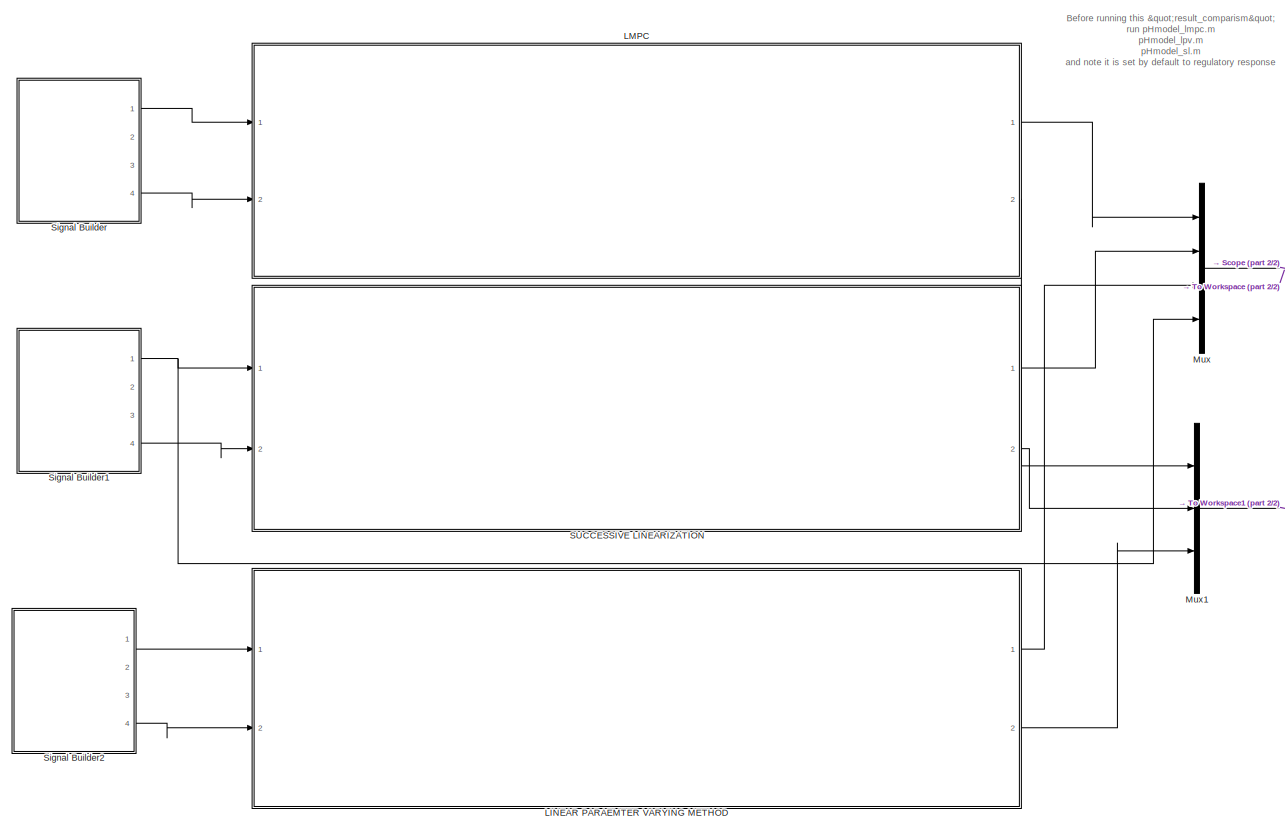
[diagram: root canvas - part 1/2, most of the canvas]
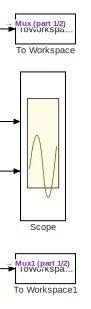
[diagram: root canvas - part 2/2, middle right region]
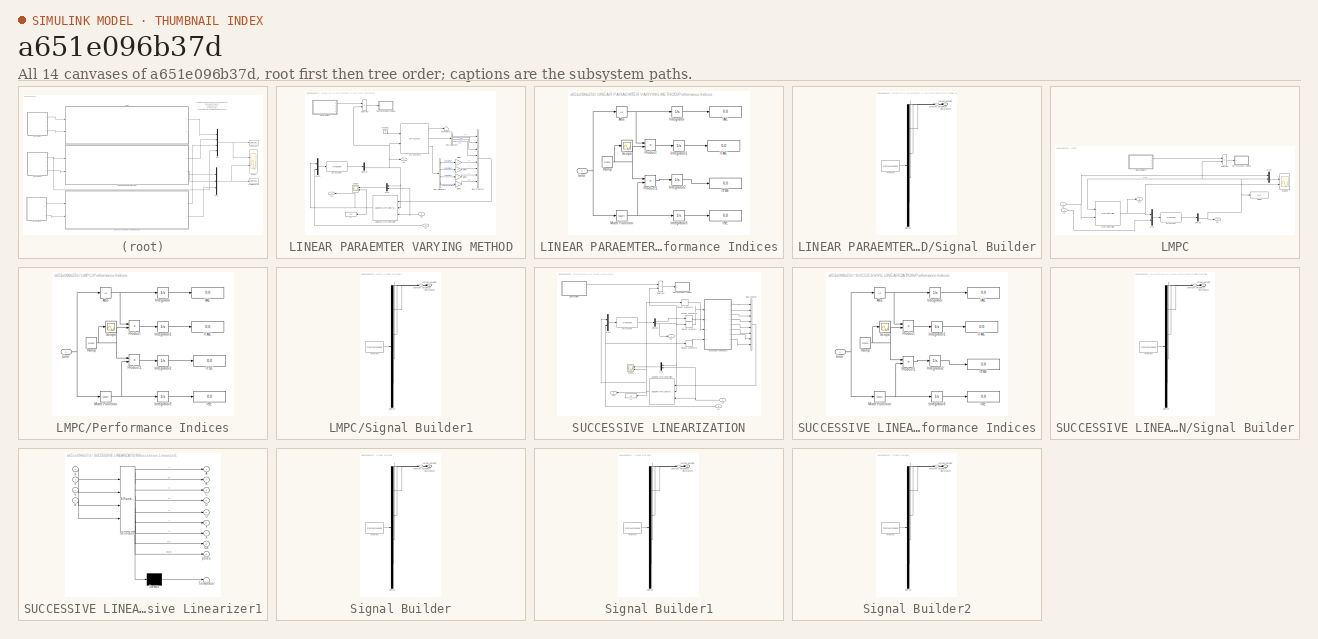
[diagram: thumbnail index - all 14 canvases of the model, root first then tree order]
MODEL slx_a651e096b37d
KIND model
CONFIG AbsTol = auto
CONFIG EnableMultiTasking = off
CONFIG FixedStep = auto
CONFIG MaxStep = auto
CONFIG MinStep = auto
CONFIG RelTol = 1e-3
CONFIG SampleTimeConstraint = Unconstrained
CONFIG SolverName = VariableStepAuto
CONFIG StartTime = 0.0
CONFIG StopTime = 3000
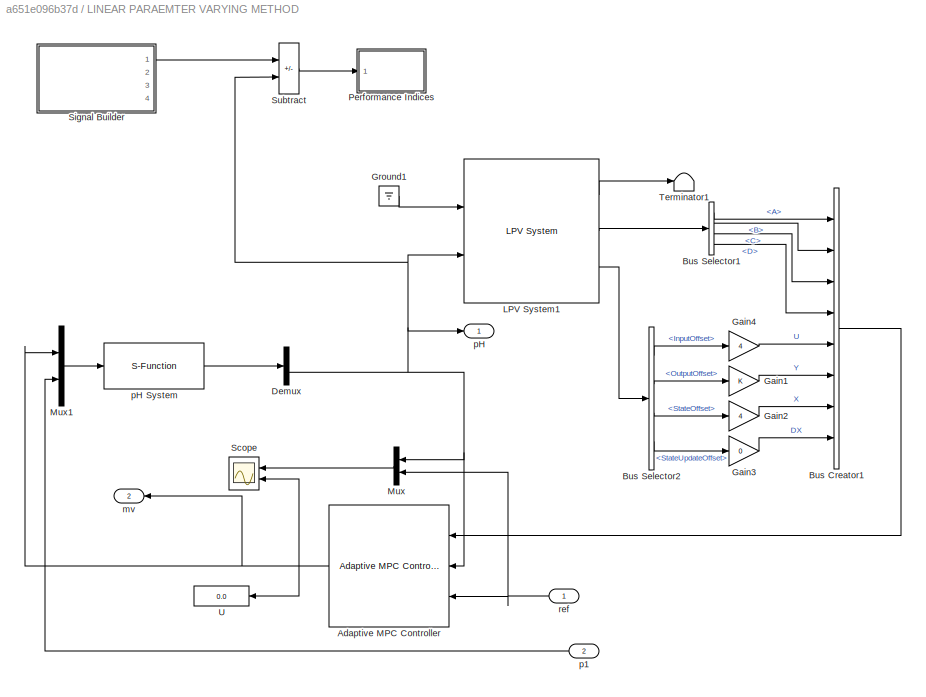
BLOCK [SubSystem] LINEAR PARAEMTER VARYING METHOD
  Ports = [2, 2]
  RequestExecContextInheritance = off
BLOCK [Reference] LINEAR PARAEMTER VARYING METHOD/Adaptive MPC Controller  REF=mpclib/Adaptive MPC Controller  (lib defined in mdl_ae329e0e0455)
  Ports = [3, 1]
  SCDEnableBlockLinearizationSpecification = on
  SourceBlock = mpclib/Adaptive MPC Controller
  SourceProductBaseCode = MP
  SourceType = Adaptive MPC
BLOCK [BusCreator] LINEAR PARAEMTER VARYING METHOD/Bus Creator1
  DisplayOption = bar
  InheritFromInputs = on
  Inputs = 8
  Ports = [8, 1]
BLOCK [BusSelector] LINEAR PARAEMTER VARYING METHOD/Bus Selector1
  OutputSignals = A,B,C,D
  Ports = [1, 4]
BLOCK [BusSelector] LINEAR PARAEMTER VARYING METHOD/Bus Selector2
  OutputSignals = InputOffset,OutputOffset,StateOffset,StateUpdateOffset
  Ports = [1, 4]
BLOCK [Demux] LINEAR PARAEMTER VARYING METHOD/Demux
  Outputs = 2
  Ports = [1, 2]
BLOCK [Gain] LINEAR PARAEMTER VARYING METHOD/Gain1
BLOCK [Gain] LINEAR PARAEMTER VARYING METHOD/Gain2
  Gain = 4
BLOCK [Gain] LINEAR PARAEMTER VARYING METHOD/Gain3
  Gain = 0
BLOCK [Gain] LINEAR PARAEMTER VARYING METHOD/Gain4
  Gain = 4
BLOCK [Ground] LINEAR PARAEMTER VARYING METHOD/Ground1
BLOCK [Reference] LINEAR PARAEMTER VARYING METHOD/LPV System1  REF=cstblocks/Linear Parameter Varying/LPV System
  Ports = [2, 3]
  SourceBlock = cstblocks/Linear Parameter Varying/LPV System
  SourceProductBaseCode = CT
  SourceType = LPV Block
BLOCK [Mux] LINEAR PARAEMTER VARYING METHOD/Mux
  DisplayOption = bar
  Inputs = 2
  NameLocation = top
  Ports = [2, 1]
BLOCK [Mux] LINEAR PARAEMTER VARYING METHOD/Mux1
  DisplayOption = bar
  Inputs = 2
  Ports = [2, 1]
BLOCK [SubSystem] LINEAR PARAEMTER VARYING METHOD/Performance Indices
  Ports = [1]
  RequestExecContextInheritance = off
BLOCK [Abs] LINEAR PARAEMTER VARYING METHOD/Performance Indices/Abs
  SaturateOnIntegerOverflow = off
BLOCK [Inport] LINEAR PARAEMTER VARYING METHOD/Performance Indices/Error
BLOCK [Display] LINEAR PARAEMTER VARYING METHOD/Performance Indices/IAE
  Decimation = 1
  Ports = [1]
BLOCK [Display] LINEAR PARAEMTER VARYING METHOD/Performance Indices/ISE
  Decimation = 1
  Ports = [1]
BLOCK [Display] LINEAR PARAEMTER VARYING METHOD/Performance Indices/ITAE
  Decimation = 1
  Ports = [1]
BLOCK [Display] LINEAR PARAEMTER VARYING METHOD/Performance Indices/ITSE
  Decimation = 1
  Ports = [1]
BLOCK [Integrator] LINEAR PARAEMTER VARYING METHOD/Performance Indices/Integrator
  Ports = [1, 1]
BLOCK [Integrator] LINEAR PARAEMTER VARYING METHOD/Performance Indices/Integrator1
  Ports = [1, 1]
BLOCK [Integrator] LINEAR PARAEMTER VARYING METHOD/Performance Indices/Integrator2
  Ports = [1, 1]
BLOCK [Integrator] LINEAR PARAEMTER VARYING METHOD/Performance Indices/Integrator3
  Ports = [1, 1]
BLOCK [Math] LINEAR PARAEMTER VARYING METHOD/Performance Indices/Math Function
  Operator = square
  Ports = [1, 1]
  SignedPower = on
BLOCK [Product] LINEAR PARAEMTER VARYING METHOD/Performance Indices/Product
  Ports = [2, 1]
  RndMeth = Zero
BLOCK [Product] LINEAR PARAEMTER VARYING METHOD/Performance Indices/Product1
  Ports = [2, 1]
  RndMeth = Zero
BLOCK [Reference] LINEAR PARAEMTER VARYING METHOD/Performance Indices/Ramp  REF=simulink/Sources/Ramp
  Ports = [0, 1]
  SourceBlock = simulink/Sources/Ramp
  SourceProductBaseCode = SL
  SourceType = Ramp
BLOCK [Scope] LINEAR PARAEMTER VARYING METHOD/Performance Indices/Scope
  Floating = off
  NumInputPorts = 1
  Ports = [1]
  ScopeSpecificationString = Simulink.scopes.TimeScopeBlockCfg('CurrentConfiguration', extmgr.ConfigurationSet(extmgr.Configuration('Core','General UI',true),extmgr.Configuration('Core','Source UI',true),extmgr.Configuration('Sources','WiredSimulink',true,'DataLoggingLimitDataPoints',true,'DataLoggingSaveFormat','Array','DataLoggingDecimation','1','DataLoggingDecimateData',true),extmgr.Configuration('Visuals','Time Domain',tr...<+878ch>  <repeated x3 — deduplicated; at blocks: Scope>
BLOCK [Scope] LINEAR PARAEMTER VARYING METHOD/Scope
  Floating = off
  NumInputPorts = 2
  Ports = [2]
  ScopeSpecificationString = Simulink.scopes.TimeScopeBlockCfg('CurrentConfiguration', extmgr.ConfigurationSet(extmgr.Configuration('Core','General UI',true),extmgr.Configuration('Core','Source UI',true),extmgr.Configuration('Sources','WiredSimulink',true,'DataLogging',true,'DataLoggingVariableName','ScopeData2'),extmgr.Configuration('Visuals','Time Domain',true,'SerializedDisplays',{struct('MinYLimReal','1.80247','MaxYLimRea...<+2102ch>
BLOCK [SubSystem] LINEAR PARAEMTER VARYING METHOD/Signal Builder
  ClipboardFcn = sigbuilder_block('clipboard');
  CloseFcn = sigbuilder_block('close');
  ContinueFcn = sigbuilder_block('continue');
  CopyFcn = sigbuilder_block('copy');
  DeleteFcn = sigbuilder_block('delete');
  LoadFcn = sigbuilder_block('load');
  MaskHideContents = on
  ModelCloseFcn = sigbuilder_block('modelClose');
  NameChangeFcn = sigbuilder_block('namechange');
  OpenFcn = sigbuilder_block('open',[404 117.5 550.5 362.5 ]);
  PauseFcn = sigbuilder_block('pause');
  Ports = [0, 4]
  PreSaveFcn = sigbuilder_block('preSave');
  RequestExecContextInheritance = off
  StartFcn = sigbuilder_block('start');
  StopFcn = sigbuilder_block('stop');
  Tag = STV Subsys
BLOCK [Demux] LINEAR PARAEMTER VARYING METHOD/Signal Builder/Demux
  DisplayOption = none
  Ports = [1, 4]
  Tag = STV Demux
BLOCK [FromWorkspace] LINEAR PARAEMTER VARYING METHOD/Signal Builder/FromWs
  Tag = STV FromWs
  VariableName = tuvar
BLOCK [Outport] LINEAR PARAEMTER VARYING METHOD/Signal Builder/constant setpoint
  Tag = STV Outport
BLOCK [Outport] LINEAR PARAEMTER VARYING METHOD/Signal Builder/disturbance
  Port = 4
  Tag = STV Outport
BLOCK [Outport] LINEAR PARAEMTER VARYING METHOD/Signal Builder/p1
  Port = 3
  Tag = STV Outport
BLOCK [Outport] LINEAR PARAEMTER VARYING METHOD/Signal Builder/varying setpoint
  Port = 2
  Tag = STV Outport
BLOCK [Sum] LINEAR PARAEMTER VARYING METHOD/Subtract
  IconShape = rectangular
  Inputs = +-
  Ports = [2, 1]
BLOCK [Terminator] LINEAR PARAEMTER VARYING METHOD/Terminator1
BLOCK [Display] LINEAR PARAEMTER VARYING METHOD/U
  Decimation = 1
  Ports = [1]
BLOCK [Outport] LINEAR PARAEMTER VARYING METHOD/mv
  Port = 2
BLOCK [Inport] LINEAR PARAEMTER VARYING METHOD/p1
  Port = 2
BLOCK [Outport] LINEAR PARAEMTER VARYING METHOD/pH
BLOCK [S-Function] LINEAR PARAEMTER VARYING METHOD/pH System
  EnableBusSupport = off
  FunctionName = pH_sfun
  Ports = [1, 1]
  SFcnIsStateOwnerBlock = off
  SFunctionDeploymentMode = off
BLOCK [Inport] LINEAR PARAEMTER VARYING METHOD/ref
BLOCK [SubSystem] LMPC
  Ports = [2, 2]
  RequestExecContextInheritance = off
BLOCK [Demux] LMPC/Demux
  Outputs = 2
  Ports = [1, 2]
BLOCK [Display] LMPC/Display
  Decimation = 1
  Ports = [1]
BLOCK [Reference] LMPC/MPC Controller  REF=mpclib/MPC Controller  (lib defined in mdl_ae329e0e0455)
  Ports = [2, 1]
  SCDEnableBlockLinearizationSpecification = on
  SourceBlock = mpclib/MPC Controller
  SourceProductBaseCode = MP
  SourceType = MPC
BLOCK [Mux] LMPC/Mux
  DisplayOption = bar
  Inputs = 2
  Ports = [2, 1]
BLOCK [Mux] LMPC/Mux3
  DisplayOption = bar
  Inputs = 2
  Ports = [2, 1]
BLOCK [SubSystem] LMPC/Performance Indices
  Ports = [1]
  RequestExecContextInheritance = off
BLOCK [Abs] LMPC/Performance Indices/Abs
  SaturateOnIntegerOverflow = off
BLOCK [Inport] LMPC/Performance Indices/Error
BLOCK [Display] LMPC/Performance Indices/IAE
  Decimation = 1
  Ports = [1]
BLOCK [Display] LMPC/Performance Indices/ISE
  Decimation = 1
  Ports = [1]
BLOCK [Display] LMPC/Performance Indices/ITAE
  Decimation = 1
  Ports = [1]
BLOCK [Display] LMPC/Performance Indices/ITSE
  Decimation = 1
  Ports = [1]
BLOCK [Integrator] LMPC/Performance Indices/Integrator
  Ports = [1, 1]
BLOCK [Integrator] LMPC/Performance Indices/Integrator1
  Ports = [1, 1]
BLOCK [Integrator] LMPC/Performance Indices/Integrator2
  Ports = [1, 1]
BLOCK [Integrator] LMPC/Performance Indices/Integrator3
  Ports = [1, 1]
BLOCK [Math] LMPC/Performance Indices/Math Function
  Operator = square
  Ports = [1, 1]
  SignedPower = on
BLOCK [Product] LMPC/Performance Indices/Product
  Ports = [2, 1]
  RndMeth = Zero
BLOCK [Product] LMPC/Performance Indices/Product1
  Ports = [2, 1]
  RndMeth = Zero
BLOCK [Reference] LMPC/Performance Indices/Ramp  REF=simulink/Sources/Ramp
  Ports = [0, 1]
  SourceBlock = simulink/Sources/Ramp
  SourceProductBaseCode = SL
  SourceType = Ramp
BLOCK [Scope] LMPC/Performance Indices/Scope
  Floating = off
  NumInputPorts = 1
  Ports = [1]
BLOCK [Scope] LMPC/Scope6
  Floating = off
  NumInputPorts = 2
  Ports = [2]
  ScopeSpecificationString = Simulink.scopes.TimeScopeBlockCfg('CurrentConfiguration', extmgr.ConfigurationSet(extmgr.Configuration('Core','General UI',true),extmgr.Configuration('Core','Source UI',true),extmgr.Configuration('Sources','WiredSimulink',true,'DataLoggingVariableName','ScopeData1'),extmgr.Configuration('Visuals','Time Domain',true,'SerializedDisplays',{struct('MinYLimReal','1.60086','MaxYLimReal','13.90053','YLab...<+2132ch>
BLOCK [SubSystem] LMPC/Signal Builder1
  ClipboardFcn = sigbuilder_block('clipboard');
  CloseFcn = sigbuilder_block('close');
  ContinueFcn = sigbuilder_block('continue');
  CopyFcn = sigbuilder_block('copy');
  DeleteFcn = sigbuilder_block('delete');
  LoadFcn = sigbuilder_block('load');
  MaskHideContents = on
  ModelCloseFcn = sigbuilder_block('modelClose');
  NameChangeFcn = sigbuilder_block('namechange');
  OpenFcn = sigbuilder_block('open',[404 117.5 550.5 362.5 ]);
  PauseFcn = sigbuilder_block('pause');
  Ports = [0, 4]
  PreSaveFcn = sigbuilder_block('preSave');
  RequestExecContextInheritance = off
  StartFcn = sigbuilder_block('start');
  StopFcn = sigbuilder_block('stop');
  Tag = STV Subsys
BLOCK [Demux] LMPC/Signal Builder1/Demux
  DisplayOption = none
  Ports = [1, 4]
  Tag = STV Demux
BLOCK [FromWorkspace] LMPC/Signal Builder1/FromWs
  Tag = STV FromWs
  VariableName = tuvar
BLOCK [Outport] LMPC/Signal Builder1/constant setpoint
  Tag = STV Outport
BLOCK [Outport] LMPC/Signal Builder1/disturbance
  Port = 4
  Tag = STV Outport
BLOCK [Outport] LMPC/Signal Builder1/p1
  Port = 3
  Tag = STV Outport
BLOCK [Outport] LMPC/Signal Builder1/varying setpoint
  Port = 2
  Tag = STV Outport
BLOCK [Sum] LMPC/Subtract
  IconShape = rectangular
  Inputs = +-
  Ports = [2, 1]
BLOCK [Outport] LMPC/mv
  Port = 2
BLOCK [Inport] LMPC/p1
  Port = 2
BLOCK [Outport] LMPC/pH
BLOCK [S-Function] LMPC/pH System
  EnableBusSupport = off
  FunctionName = pH_sfun
  Ports = [1, 1]
  SFcnIsStateOwnerBlock = off
  SFunctionDeploymentMode = off
BLOCK [Inport] LMPC/ref
BLOCK [Mux] Mux
  DisplayOption = bar
  Ports = [4, 1]
BLOCK [Mux] Mux1
  DisplayOption = bar
  Inputs = 3
  Ports = [3, 1]
BLOCK [SubSystem] SUCCESSIVE LINEARIZATION
  Ports = [2, 2]
  RequestExecContextInheritance = off
BLOCK [Reference] SUCCESSIVE LINEARIZATION/Adaptive MPC Controller  REF=mpclib/Adaptive MPC Controller  (lib defined in mdl_ae329e0e0455)
  Ports = [3, 1]
  SCDEnableBlockLinearizationSpecification = on
  SourceBlock = mpclib/Adaptive MPC Controller
  SourceProductBaseCode = MP
  SourceType = Adaptive MPC
BLOCK [BusCreator] SUCCESSIVE LINEARIZATION/Bus Creator
  DisplayOption = bar
  InheritFromInputs = on
  Inputs = 8
  Ports = [8, 1]
BLOCK [Demux] SUCCESSIVE LINEARIZATION/Demux
  Outputs = 2
  Ports = [1, 2]
BLOCK [Mux] SUCCESSIVE LINEARIZATION/Mux
  DisplayOption = bar
  Inputs = 2
  NameLocation = top
  Ports = [2, 1]
BLOCK [Mux] SUCCESSIVE LINEARIZATION/Mux1
  DisplayOption = bar
  Inputs = 2
  Ports = [2, 1]
BLOCK [Memory] SUCCESSIVE LINEARIZATION/Output Memory
  InitialCondition = 2.542
BLOCK [Memory] SUCCESSIVE LINEARIZATION/Output Memory1
  InitialCondition = 0.8
BLOCK [Memory] SUCCESSIVE LINEARIZATION/Output Memory2
  InitialCondition = 13
BLOCK [Memory] SUCCESSIVE LINEARIZATION/Output Memory3
  InitialCondition = 0.129987
BLOCK [SubSystem] SUCCESSIVE LINEARIZATION/Performance Indices
  Ports = [1]
  RequestExecContextInheritance = off
BLOCK [Abs] SUCCESSIVE LINEARIZATION/Performance Indices/Abs
  SaturateOnIntegerOverflow = off
BLOCK [Inport] SUCCESSIVE LINEARIZATION/Performance Indices/Error
BLOCK [Display] SUCCESSIVE LINEARIZATION/Performance Indices/IAE
  Decimation = 1
  Ports = [1]
BLOCK [Display] SUCCESSIVE LINEARIZATION/Performance Indices/ISE
  Decimation = 1
  Ports = [1]
BLOCK [Display] SUCCESSIVE LINEARIZATION/Performance Indices/ITAE
  Decimation = 1
  Ports = [1]
BLOCK [Display] SUCCESSIVE LINEARIZATION/Performance Indices/ITSE
  Decimation = 1
  Ports = [1]
BLOCK [Integrator] SUCCESSIVE LINEARIZATION/Performance Indices/Integrator
  Ports = [1, 1]
BLOCK [Integrator] SUCCESSIVE LINEARIZATION/Performance Indices/Integrator1
  Ports = [1, 1]
BLOCK [Integrator] SUCCESSIVE LINEARIZATION/Performance Indices/Integrator2
  Ports = [1, 1]
BLOCK [Integrator] SUCCESSIVE LINEARIZATION/Performance Indices/Integrator3
  Ports = [1, 1]
BLOCK [Math] SUCCESSIVE LINEARIZATION/Performance Indices/Math Function
  Operator = square
  Ports = [1, 1]
  SignedPower = on
BLOCK [Product] SUCCESSIVE LINEARIZATION/Performance Indices/Product
  Ports = [2, 1]
  RndMeth = Zero
BLOCK [Product] SUCCESSIVE LINEARIZATION/Performance Indices/Product1
  Ports = [2, 1]
  RndMeth = Zero
BLOCK [Reference] SUCCESSIVE LINEARIZATION/Performance Indices/Ramp  REF=simulink/Sources/Ramp
  Ports = [0, 1]
  SourceBlock = simulink/Sources/Ramp
  SourceProductBaseCode = SL
  SourceType = Ramp
BLOCK [Scope] SUCCESSIVE LINEARIZATION/Performance Indices/Scope
  Floating = off
  NumInputPorts = 1
  Ports = [1]
BLOCK [Scope] SUCCESSIVE LINEARIZATION/Scope
  Floating = off
  NumInputPorts = 2
  Ports = [2]
  ScopeSpecificationString = Simulink.scopes.TimeScopeBlockCfg('CurrentConfiguration', extmgr.ConfigurationSet(extmgr.Configuration('Core','General UI',true),extmgr.Configuration('Core','Source UI',true),extmgr.Configuration('Sources','WiredSimulink',true,'DataLoggingVariableName','ScopeData3','DataLogging',true),extmgr.Configuration('Visuals','Time Domain',true,'SerializedDisplays',{struct('MinYLimReal','1.80997','MaxYLimRea...<+2106ch>
BLOCK [SubSystem] SUCCESSIVE LINEARIZATION/Signal Builder
  ClipboardFcn = sigbuilder_block('clipboard');
  CloseFcn = sigbuilder_block('close');
  ContinueFcn = sigbuilder_block('continue');
  CopyFcn = sigbuilder_block('copy');
  DeleteFcn = sigbuilder_block('delete');
  LoadFcn = sigbuilder_block('load');
  MaskHideContents = on
  ModelCloseFcn = sigbuilder_block('modelClose');
  NameChangeFcn = sigbuilder_block('namechange');
  OpenFcn = sigbuilder_block('open',[404 117.5 550.5 362.5 ]);
  PauseFcn = sigbuilder_block('pause');
  Ports = [0, 4]
  PreSaveFcn = sigbuilder_block('preSave');
  RequestExecContextInheritance = off
  StartFcn = sigbuilder_block('start');
  StopFcn = sigbuilder_block('stop');
  Tag = STV Subsys
BLOCK [Demux] SUCCESSIVE LINEARIZATION/Signal Builder/Demux
  DisplayOption = none
  Ports = [1, 4]
  Tag = STV Demux
BLOCK [FromWorkspace] SUCCESSIVE LINEARIZATION/Signal Builder/FromWs
  Tag = STV FromWs
  VariableName = tuvar
BLOCK [Outport] SUCCESSIVE LINEARIZATION/Signal Builder/constant setpoint
  Tag = STV Outport
BLOCK [Outport] SUCCESSIVE LINEARIZATION/Signal Builder/disturbance
  Port = 4
  Tag = STV Outport
BLOCK [Outport] SUCCESSIVE LINEARIZATION/Signal Builder/p1
  Port = 3
  Tag = STV Outport
BLOCK [Outport] SUCCESSIVE LINEARIZATION/Signal Builder/varying setpoint
  Port = 2
  Tag = STV Outport
BLOCK [Sum] SUCCESSIVE LINEARIZATION/Subtract
  IconShape = rectangular
  Inputs = +-
  Ports = [2, 1]
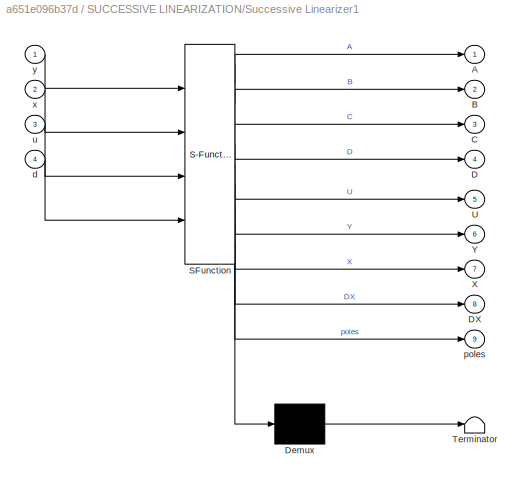
BLOCK [SubSystem] SUCCESSIVE LINEARIZATION/Successive Linearizer1
  ErrorFcn = Stateflow.Translate.translate
  PermitHierarchicalResolution = ExplicitOnly
  Ports = [4, 9]
  RequestExecContextInheritance = off
  SFBlockType = MATLAB Function
  SystemSampleTime = 0.5
  TreatAsAtomicUnit = on
BLOCK [Demux] SUCCESSIVE LINEARIZATION/Successive Linearizer1/ Demux 
  Outputs = 1
  Ports = [1, 1]
BLOCK [S-Function] SUCCESSIVE LINEARIZATION/Successive Linearizer1/ SFunction 
  EnableBusSupport = on
  FunctionName = sf_sfun
  PortCounts = [4 10]
  Ports = [4, 10]
  SFcnIsStateOwnerBlock = off
  SFunctionDeploymentMode = off
  Tag = Stateflow S-Function 1
BLOCK [Terminator] SUCCESSIVE LINEARIZATION/Successive Linearizer1/ Terminator 
BLOCK [Outport] SUCCESSIVE LINEARIZATION/Successive Linearizer1/A
  VectorParamsAs1DForOutWhenUnconnected = off
BLOCK [Outport] SUCCESSIVE LINEARIZATION/Successive Linearizer1/B
  Port = 2
  VectorParamsAs1DForOutWhenUnconnected = off
BLOCK [Outport] SUCCESSIVE LINEARIZATION/Successive Linearizer1/C
  Port = 3
  VectorParamsAs1DForOutWhenUnconnected = off
BLOCK [Outport] SUCCESSIVE LINEARIZATION/Successive Linearizer1/D
  Port = 4
  VectorParamsAs1DForOutWhenUnconnected = off
BLOCK [Outport] SUCCESSIVE LINEARIZATION/Successive Linearizer1/DX
  Port = 8
  VectorParamsAs1DForOutWhenUnconnected = off
BLOCK [Outport] SUCCESSIVE LINEARIZATION/Successive Linearizer1/U
  Port = 5
  VectorParamsAs1DForOutWhenUnconnected = off
BLOCK [Outport] SUCCESSIVE LINEARIZATION/Successive Linearizer1/X
  Port = 7
  VectorParamsAs1DForOutWhenUnconnected = off
BLOCK [Outport] SUCCESSIVE LINEARIZATION/Successive Linearizer1/Y
  Port = 6
  VectorParamsAs1DForOutWhenUnconnected = off
BLOCK [Inport] SUCCESSIVE LINEARIZATION/Successive Linearizer1/d
  Port = 4
BLOCK [Outport] SUCCESSIVE LINEARIZATION/Successive Linearizer1/poles
  Port = 9
BLOCK [Inport] SUCCESSIVE LINEARIZATION/Successive Linearizer1/u
  Port = 3
BLOCK [Inport] SUCCESSIVE LINEARIZATION/Successive Linearizer1/x
  Port = 2
BLOCK [Inport] SUCCESSIVE LINEARIZATION/Successive Linearizer1/y
BLOCK [Display] SUCCESSIVE LINEARIZATION/U
  Decimation = 1
  Ports = [1]
BLOCK [Outport] SUCCESSIVE LINEARIZATION/mv
  Port = 2
BLOCK [Inport] SUCCESSIVE LINEARIZATION/p1
  Port = 2
BLOCK [Outport] SUCCESSIVE LINEARIZATION/pH
BLOCK [S-Function] SUCCESSIVE LINEARIZATION/pH System
  EnableBusSupport = off
  FunctionName = pH_sfun
  Ports = [1, 1]
  SFcnIsStateOwnerBlock = off
  SFunctionDeploymentMode = off
BLOCK [Inport] SUCCESSIVE LINEARIZATION/ref
BLOCK [Scope] Scope
  Floating = off
  NumInputPorts = 2
  Ports = [2]
  ScopeSpecificationString = Simulink.scopes.TimeScopeBlockCfg('CurrentConfiguration', extmgr.ConfigurationSet(extmgr.Configuration('Core','General UI',true),extmgr.Configuration('Core','Source UI',true),extmgr.Configuration('Sources','WiredSimulink',true,'DataLoggingVariableName','ScopeData4'),extmgr.Configuration('Visuals','Time Domain',true,'SerializedDisplays',{struct('MinYLimReal','1.78843','MaxYLimReal','13.66161','YLab...<+2349ch>
BLOCK [SubSystem] Signal Builder
  ClipboardFcn = sigbuilder_block('clipboard');
  CloseFcn = sigbuilder_block('close');
  ContinueFcn = sigbuilder_block('continue');
  CopyFcn = sigbuilder_block('copy');
  DeleteFcn = sigbuilder_block('delete');
  LoadFcn = sigbuilder_block('load');
  MaskHideContents = on
  ModelCloseFcn = sigbuilder_block('modelClose');
  NameChangeFcn = sigbuilder_block('namechange');
  OpenFcn = sigbuilder_block('open',[404 117.5 550.5 362.5 ]);
  PauseFcn = sigbuilder_block('pause');
  Ports = [0, 4]
  PreSaveFcn = sigbuilder_block('preSave');
  RequestExecContextInheritance = off
  StartFcn = sigbuilder_block('start');
  StopFcn = sigbuilder_block('stop');
  Tag = STV Subsys
BLOCK [Demux] Signal Builder/Demux
  DisplayOption = none
  Ports = [1, 4]
  Tag = STV Demux
BLOCK [FromWorkspace] Signal Builder/FromWs
  Tag = STV FromWs
  VariableName = tuvar
BLOCK [Outport] Signal Builder/constant setpoint
  Tag = STV Outport
BLOCK [Outport] Signal Builder/disturbance
  Port = 4
  Tag = STV Outport
BLOCK [Outport] Signal Builder/p1
  Port = 3
  Tag = STV Outport
BLOCK [Outport] Signal Builder/varying setpoint
  Port = 2
  Tag = STV Outport
BLOCK [SubSystem] Signal Builder1
  ClipboardFcn = sigbuilder_block('clipboard');
  CloseFcn = sigbuilder_block('close');
  ContinueFcn = sigbuilder_block('continue');
  CopyFcn = sigbuilder_block('copy');
  DeleteFcn = sigbuilder_block('delete');
  LoadFcn = sigbuilder_block('load');
  MaskHideContents = on
  ModelCloseFcn = sigbuilder_block('modelClose');
  NameChangeFcn = sigbuilder_block('namechange');
  OpenFcn = sigbuilder_block('open',[404 117.5 550.5 362.5 ]);
  PauseFcn = sigbuilder_block('pause');
  Ports = [0, 4]
  PreSaveFcn = sigbuilder_block('preSave');
  RequestExecContextInheritance = off
  StartFcn = sigbuilder_block('start');
  StopFcn = sigbuilder_block('stop');
  Tag = STV Subsys
BLOCK [Demux] Signal Builder1/Demux
  DisplayOption = none
  Ports = [1, 4]
  Tag = STV Demux
BLOCK [FromWorkspace] Signal Builder1/FromWs
  Tag = STV FromWs
  VariableName = tuvar
BLOCK [Outport] Signal Builder1/constant setpoint
  Tag = STV Outport
BLOCK [Outport] Signal Builder1/disturbance
  Port = 4
  Tag = STV Outport
BLOCK [Outport] Signal Builder1/p1
  Port = 3
  Tag = STV Outport
BLOCK [Outport] Signal Builder1/varying setpoint
  Port = 2
  Tag = STV Outport
BLOCK [SubSystem] Signal Builder2
  ClipboardFcn = sigbuilder_block('clipboard');
  CloseFcn = sigbuilder_block('close');
  ContinueFcn = sigbuilder_block('continue');
  CopyFcn = sigbuilder_block('copy');
  DeleteFcn = sigbuilder_block('delete');
  LoadFcn = sigbuilder_block('load');
  MaskHideContents = on
  ModelCloseFcn = sigbuilder_block('modelClose');
  NameChangeFcn = sigbuilder_block('namechange');
  OpenFcn = sigbuilder_block('open',[404 117.5 550.5 362.5 ]);
  PauseFcn = sigbuilder_block('pause');
  Ports = [0, 4]
  PreSaveFcn = sigbuilder_block('preSave');
  RequestExecContextInheritance = off
  StartFcn = sigbuilder_block('start');
  StopFcn = sigbuilder_block('stop');
  Tag = STV Subsys
BLOCK [Demux] Signal Builder2/Demux
  DisplayOption = none
  Ports = [1, 4]
  Tag = STV Demux
BLOCK [FromWorkspace] Signal Builder2/FromWs
  Tag = STV FromWs
  VariableName = tuvar
BLOCK [Outport] Signal Builder2/constant setpoint
  Tag = STV Outport
BLOCK [Outport] Signal Builder2/disturbance
  Port = 4
  Tag = STV Outport
BLOCK [Outport] Signal Builder2/p1
  Port = 3
  Tag = STV Outport
BLOCK [Outport] Signal Builder2/varying setpoint
  Port = 2
  Tag = STV Outport
BLOCK [ToWorkspace] To Workspace
  FixptAsFi = on
  MaxDataPoints = inf
  Ports = [1]
  SampleTime = -1
  SaveFormat = Structure With Time
  VariableName = asave
BLOCK [ToWorkspace] To Workspace1
  FixptAsFi = on
  MaxDataPoints = inf
  Ports = [1]
  SampleTime = -1
  SaveFormat = Structure With Time
  VariableName = bsave
ANNOTATION (root): Before running this "result_comparism" run pHmodel_lmpc.m pHmodel_lpv.m pHmodel_sl.m and note it is set by default to regulatory response
NET LINEAR PARAEMTER VARYING METHOD/Adaptive MPC Controller:1 -> LINEAR PARAEMTER VARYING METHOD/Mux1:1, LINEAR PARAEMTER VARYING METHOD/Scope:2, LINEAR PARAEMTER VARYING METHOD/U:1, LINEAR PARAEMTER VARYING METHOD/mv:1
LINE LINEAR PARAEMTER VARYING METHOD/Bus Creator1:1 -> LINEAR PARAEMTER VARYING METHOD/Adaptive MPC Controller:1
LINE LINEAR PARAEMTER VARYING METHOD/Bus Selector1:1 -> LINEAR PARAEMTER VARYING METHOD/Bus Creator1:1
LINE LINEAR PARAEMTER VARYING METHOD/Bus Selector1:2 -> LINEAR PARAEMTER VARYING METHOD/Bus Creator1:2
LINE LINEAR PARAEMTER VARYING METHOD/Bus Selector1:3 -> LINEAR PARAEMTER VARYING METHOD/Bus Creator1:3
LINE LINEAR PARAEMTER VARYING METHOD/Bus Selector1:4 -> LINEAR PARAEMTER VARYING METHOD/Bus Creator1:4
LINE LINEAR PARAEMTER VARYING METHOD/Bus Selector2:1 -> LINEAR PARAEMTER VARYING METHOD/Gain4:1
LINE LINEAR PARAEMTER VARYING METHOD/Bus Selector2:2 -> LINEAR PARAEMTER VARYING METHOD/Gain1:1
LINE LINEAR PARAEMTER VARYING METHOD/Bus Selector2:3 -> LINEAR PARAEMTER VARYING METHOD/Gain2:1
LINE LINEAR PARAEMTER VARYING METHOD/Bus Selector2:4 -> LINEAR PARAEMTER VARYING METHOD/Gain3:1
NET LINEAR PARAEMTER VARYING METHOD/Demux:2 -> LINEAR PARAEMTER VARYING METHOD/Adaptive MPC Controller:2, LINEAR PARAEMTER VARYING METHOD/LPV System1:2, LINEAR PARAEMTER VARYING METHOD/Mux:1, LINEAR PARAEMTER VARYING METHOD/Subtract:2, LINEAR PARAEMTER VARYING METHOD/pH:1
LINE LINEAR PARAEMTER VARYING METHOD/Gain1:1 -> LINEAR PARAEMTER VARYING METHOD/Bus Creator1:6
LINE LINEAR PARAEMTER VARYING METHOD/Gain2:1 -> LINEAR PARAEMTER VARYING METHOD/Bus Creator1:7
LINE LINEAR PARAEMTER VARYING METHOD/Gain3:1 -> LINEAR PARAEMTER VARYING METHOD/Bus Creator1:8
LINE LINEAR PARAEMTER VARYING METHOD/Gain4:1 -> LINEAR PARAEMTER VARYING METHOD/Bus Creator1:5
LINE LINEAR PARAEMTER VARYING METHOD/Ground1:1 -> LINEAR PARAEMTER VARYING METHOD/LPV System1:1
LINE LINEAR PARAEMTER VARYING METHOD/LPV System1:1 -> LINEAR PARAEMTER VARYING METHOD/Terminator1:1
LINE LINEAR PARAEMTER VARYING METHOD/LPV System1:2 -> LINEAR PARAEMTER VARYING METHOD/Bus Selector1:1
LINE LINEAR PARAEMTER VARYING METHOD/LPV System1:3 -> LINEAR PARAEMTER VARYING METHOD/Bus Selector2:1
LINE LINEAR PARAEMTER VARYING METHOD/Mux1:1 -> LINEAR PARAEMTER VARYING METHOD/pH System:1
LINE LINEAR PARAEMTER VARYING METHOD/Mux:1 -> LINEAR PARAEMTER VARYING METHOD/Scope:1
NET LINEAR PARAEMTER VARYING METHOD/Performance Indices/Abs:1 -> LINEAR PARAEMTER VARYING METHOD/Performance Indices/Integrator:1, LINEAR PARAEMTER VARYING METHOD/Performance Indices/Product:1
NET LINEAR PARAEMTER VARYING METHOD/Performance Indices/Error:1 -> LINEAR PARAEMTER VARYING METHOD/Performance Indices/Abs:1, LINEAR PARAEMTER VARYING METHOD/Performance Indices/Math Function:1
LINE LINEAR PARAEMTER VARYING METHOD/Performance Indices/Integrator1:1 -> LINEAR PARAEMTER VARYING METHOD/Performance Indices/ITAE:1
LINE LINEAR PARAEMTER VARYING METHOD/Performance Indices/Integrator2:1 -> LINEAR PARAEMTER VARYING METHOD/Performance Indices/ITSE:1
LINE LINEAR PARAEMTER VARYING METHOD/Performance Indices/Integrator3:1 -> LINEAR PARAEMTER VARYING METHOD/Performance Indices/ISE:1
LINE LINEAR PARAEMTER VARYING METHOD/Performance Indices/Integrator:1 -> LINEAR PARAEMTER VARYING METHOD/Performance Indices/IAE:1
NET LINEAR PARAEMTER VARYING METHOD/Performance Indices/Math Function:1 -> LINEAR PARAEMTER VARYING METHOD/Performance Indices/Integrator3:1, LINEAR PARAEMTER VARYING METHOD/Performance Indices/Product1:2
LINE LINEAR PARAEMTER VARYING METHOD/Performance Indices/Product1:1 -> LINEAR PARAEMTER VARYING METHOD/Performance Indices/Integrator2:1
LINE LINEAR PARAEMTER VARYING METHOD/Performance Indices/Product:1 -> LINEAR PARAEMTER VARYING METHOD/Performance Indices/Integrator1:1
NET LINEAR PARAEMTER VARYING METHOD/Performance Indices/Ramp:1 -> LINEAR PARAEMTER VARYING METHOD/Performance Indices/Product1:1, LINEAR PARAEMTER VARYING METHOD/Performance Indices/Product:2, LINEAR PARAEMTER VARYING METHOD/Performance Indices/Scope:1
LINE LINEAR PARAEMTER VARYING METHOD/Signal Builder:1 -> LINEAR PARAEMTER VARYING METHOD/Subtract:1
LINE LINEAR PARAEMTER VARYING METHOD/Subtract:1 -> LINEAR PARAEMTER VARYING METHOD/Performance Indices:1
LINE LINEAR PARAEMTER VARYING METHOD/p1:1 -> LINEAR PARAEMTER VARYING METHOD/Mux1:2
LINE LINEAR PARAEMTER VARYING METHOD/pH System:1 -> LINEAR PARAEMTER VARYING METHOD/Demux:1
NET LINEAR PARAEMTER VARYING METHOD/ref:1 -> LINEAR PARAEMTER VARYING METHOD/Adaptive MPC Controller:3, LINEAR PARAEMTER VARYING METHOD/Mux:2
LINE LINEAR PARAEMTER VARYING METHOD:1 -> Mux:3
LINE LINEAR PARAEMTER VARYING METHOD:2 -> Mux1:3
NET LMPC/Demux:2 -> LMPC/Display:1, LMPC/MPC Controller:1, LMPC/Mux3:2, LMPC/Subtract:2, LMPC/pH:1
NET LMPC/MPC Controller:1 -> LMPC/Mux:1, LMPC/Scope6:2, LMPC/mv:1
LINE LMPC/Mux3:1 -> LMPC/Scope6:1
LINE LMPC/Mux:1 -> LMPC/pH System:1
NET LMPC/Performance Indices/Abs:1 -> LMPC/Performance Indices/Integrator:1, LMPC/Performance Indices/Product:1
NET LMPC/Performance Indices/Error:1 -> LMPC/Performance Indices/Abs:1, LMPC/Performance Indices/Math Function:1
LINE LMPC/Performance Indices/Integrator1:1 -> LMPC/Performance Indices/ITAE:1
LINE LMPC/Performance Indices/Integrator2:1 -> LMPC/Performance Indices/ITSE:1
LINE LMPC/Performance Indices/Integrator3:1 -> LMPC/Performance Indices/ISE:1
LINE LMPC/Performance Indices/Integrator:1 -> LMPC/Performance Indices/IAE:1
NET LMPC/Performance Indices/Math Function:1 -> LMPC/Performance Indices/Integrator3:1, LMPC/Performance Indices/Product1:2
LINE LMPC/Performance Indices/Product1:1 -> LMPC/Performance Indices/Integrator2:1
LINE LMPC/Performance Indices/Product:1 -> LMPC/Performance Indices/Integrator1:1
NET LMPC/Performance Indices/Ramp:1 -> LMPC/Performance Indices/Product1:1, LMPC/Performance Indices/Product:2, LMPC/Performance Indices/Scope:1
LINE LMPC/Signal Builder1:1 -> LMPC/Subtract:1
LINE LMPC/Subtract:1 -> LMPC/Performance Indices:1
LINE LMPC/p1:1 -> LMPC/Mux:2
LINE LMPC/pH System:1 -> LMPC/Demux:1
NET LMPC/ref:1 -> LMPC/MPC Controller:2, LMPC/Mux3:1
LINE LMPC:1 -> Mux:1
LINE LMPC:2 -> Mux1:1
NET Mux1:1 -> Scope:2, To Workspace1:1
NET Mux:1 -> Scope:1, To Workspace:1
NET SUCCESSIVE LINEARIZATION/Adaptive MPC Controller:1 -> SUCCESSIVE LINEARIZATION/Mux1:1, SUCCESSIVE LINEARIZATION/Output Memory1:1, SUCCESSIVE LINEARIZATION/Scope:2, SUCCESSIVE LINEARIZATION/U:1, SUCCESSIVE LINEARIZATION/mv:1
LINE SUCCESSIVE LINEARIZATION/Bus Creator:1 -> SUCCESSIVE LINEARIZATION/Adaptive MPC Controller:1
LINE SUCCESSIVE LINEARIZATION/Demux:1 -> SUCCESSIVE LINEARIZATION/Output Memory3:1
NET SUCCESSIVE LINEARIZATION/Demux:2 -> SUCCESSIVE LINEARIZATION/Adaptive MPC Controller:2, SUCCESSIVE LINEARIZATION/Mux:1, SUCCESSIVE LINEARIZATION/Output Memory:1, SUCCESSIVE LINEARIZATION/Subtract:2, SUCCESSIVE LINEARIZATION/pH:1
LINE SUCCESSIVE LINEARIZATION/Mux1:1 -> SUCCESSIVE LINEARIZATION/pH System:1
LINE SUCCESSIVE LINEARIZATION/Mux:1 -> SUCCESSIVE LINEARIZATION/Scope:1
LINE SUCCESSIVE LINEARIZATION/Output Memory1:1 -> SUCCESSIVE LINEARIZATION/Successive Linearizer1:3
LINE SUCCESSIVE LINEARIZATION/Output Memory2:1 -> SUCCESSIVE LINEARIZATION/Successive Linearizer1:4
LINE SUCCESSIVE LINEARIZATION/Output Memory3:1 -> SUCCESSIVE LINEARIZATION/Successive Linearizer1:2
LINE SUCCESSIVE LINEARIZATION/Output Memory:1 -> SUCCESSIVE LINEARIZATION/Successive Linearizer1:1
NET SUCCESSIVE LINEARIZATION/Performance Indices/Abs:1 -> SUCCESSIVE LINEARIZATION/Performance Indices/Integrator:1, SUCCESSIVE LINEARIZATION/Performance Indices/Product:1
NET SUCCESSIVE LINEARIZATION/Performance Indices/Error:1 -> SUCCESSIVE LINEARIZATION/Performance Indices/Abs:1, SUCCESSIVE LINEARIZATION/Performance Indices/Math Function:1
LINE SUCCESSIVE LINEARIZATION/Performance Indices/Integrator1:1 -> SUCCESSIVE LINEARIZATION/Performance Indices/ITAE:1
LINE SUCCESSIVE LINEARIZATION/Performance Indices/Integrator2:1 -> SUCCESSIVE LINEARIZATION/Performance Indices/ITSE:1
LINE SUCCESSIVE LINEARIZATION/Performance Indices/Integrator3:1 -> SUCCESSIVE LINEARIZATION/Performance Indices/ISE:1
LINE SUCCESSIVE LINEARIZATION/Performance Indices/Integrator:1 -> SUCCESSIVE LINEARIZATION/Performance Indices/IAE:1
NET SUCCESSIVE LINEARIZATION/Performance Indices/Math Function:1 -> SUCCESSIVE LINEARIZATION/Performance Indices/Integrator3:1, SUCCESSIVE LINEARIZATION/Performance Indices/Product1:2
LINE SUCCESSIVE LINEARIZATION/Performance Indices/Product1:1 -> SUCCESSIVE LINEARIZATION/Performance Indices/Integrator2:1
LINE SUCCESSIVE LINEARIZATION/Performance Indices/Product:1 -> SUCCESSIVE LINEARIZATION/Performance Indices/Integrator1:1
NET SUCCESSIVE LINEARIZATION/Performance Indices/Ramp:1 -> SUCCESSIVE LINEARIZATION/Performance Indices/Product1:1, SUCCESSIVE LINEARIZATION/Performance Indices/Product:2, SUCCESSIVE LINEARIZATION/Performance Indices/Scope:1
LINE SUCCESSIVE LINEARIZATION/Signal Builder:1 -> SUCCESSIVE LINEARIZATION/Subtract:1
LINE SUCCESSIVE LINEARIZATION/Subtract:1 -> SUCCESSIVE LINEARIZATION/Performance Indices:1
LINE SUCCESSIVE LINEARIZATION/Successive Linearizer1:1 -> SUCCESSIVE LINEARIZATION/Bus Creator:1
LINE SUCCESSIVE LINEARIZATION/Successive Linearizer1:2 -> SUCCESSIVE LINEARIZATION/Bus Creator:2
LINE SUCCESSIVE LINEARIZATION/Successive Linearizer1:3 -> SUCCESSIVE LINEARIZATION/Bus Creator:3
LINE SUCCESSIVE LINEARIZATION/Successive Linearizer1:4 -> SUCCESSIVE LINEARIZATION/Bus Creator:4
LINE SUCCESSIVE LINEARIZATION/Successive Linearizer1:5 -> SUCCESSIVE LINEARIZATION/Bus Creator:5
LINE SUCCESSIVE LINEARIZATION/Successive Linearizer1:6 -> SUCCESSIVE LINEARIZATION/Bus Creator:6
LINE SUCCESSIVE LINEARIZATION/Successive Linearizer1:7 -> SUCCESSIVE LINEARIZATION/Bus Creator:7
LINE SUCCESSIVE LINEARIZATION/Successive Linearizer1:8 -> SUCCESSIVE LINEARIZATION/Bus Creator:8
NET SUCCESSIVE LINEARIZATION/p1:1 -> SUCCESSIVE LINEARIZATION/Mux1:2, SUCCESSIVE LINEARIZATION/Output Memory2:1
LINE SUCCESSIVE LINEARIZATION/pH System:1 -> SUCCESSIVE LINEARIZATION/Demux:1
NET SUCCESSIVE LINEARIZATION/ref:1 -> SUCCESSIVE LINEARIZATION/Adaptive MPC Controller:3, SUCCESSIVE LINEARIZATION/Mux:2
LINE SUCCESSIVE LINEARIZATION:1 -> Mux:2
LINE SUCCESSIVE LINEARIZATION:2 -> Mux1:2
NET Signal Builder1:1 -> Mux:4, SUCCESSIVE LINEARIZATION:1
LINE Signal Builder1:4 -> SUCCESSIVE LINEARIZATION:2
LINE Signal Builder2:1 -> LINEAR PARAEMTER VARYING METHOD:1
LINE Signal Builder2:4 -> LINEAR PARAEMTER VARYING METHOD:2
LINE Signal Builder:1 -> LMPC:1
LINE Signal Builder:4 -> LMPC:2
note: NET lines group one-source signal fan-out (src -> all destinations, sorted); 1:1 wires keep LINE
CHART SUCCESSIVE LINEARIZATION/Successive Linearizer1 states=1 transitions=1
  STATE_LABEL 'eML_blk_kernel()'
  STATE_LABEL 'SCRIPT:\nfunction [A, B, C, D, U, Y, X, DX,poles] = fcn(y, x, u, d)\n\n%%%%%%%%%%%%%%%%%%%%%%%%%%%%%%%%%%%%%%%%%%%%%%%%%%%%%%%\n%#codegen\n\n% Define constant outputs\nTs = 0.1;\nU = u(1) ;\nY = y ;\nX = x(1) ;\n\n% Analytical linearization of mechanistic CSTR model (continuous time)\n% [A, Bo] = getContinuous(T, CA, CAi, Ti, Tc);\n[a, b, c, d] = getContinuous(y, x, u, d, Ts)  ;\n\n% Convert continuous to discret...<+1511ch>'
CHART  states=0 transitions=0
